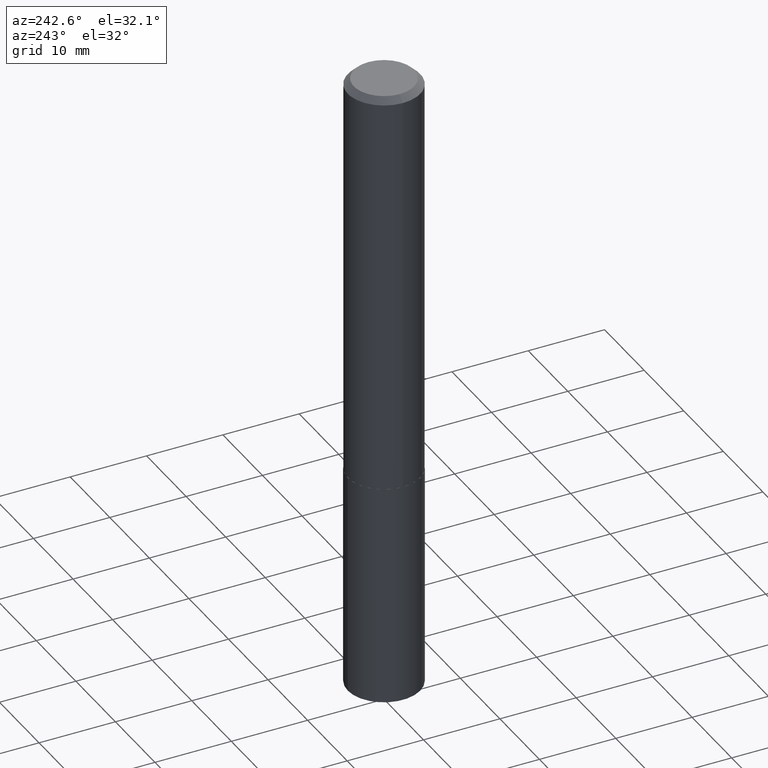
[diagram: clean part render]
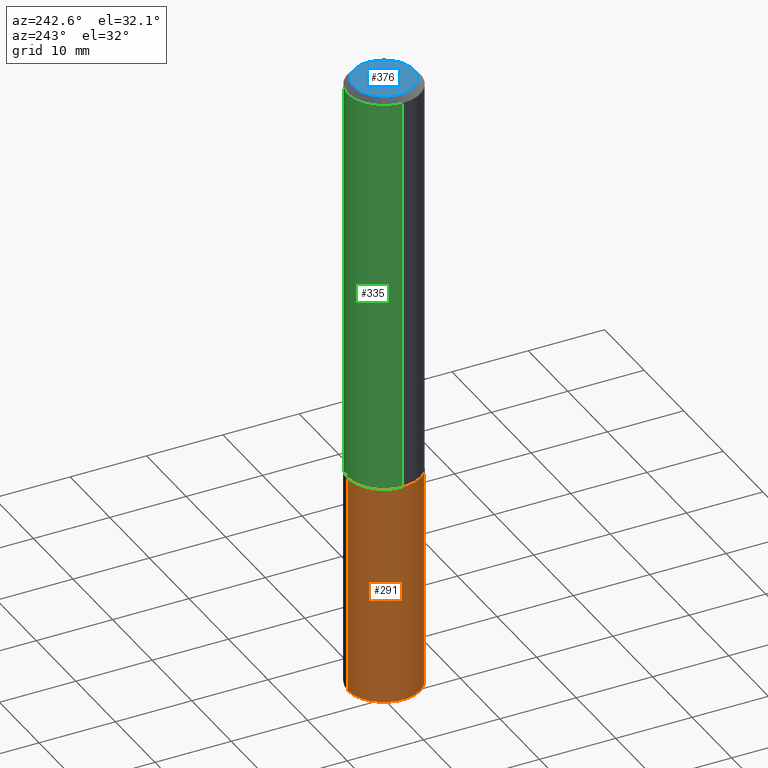
[diagram: same view with three faces highlighted in distinct colors, each labeled with its STEP entity id]
A machine part, auxiliary view with three faces highlighted in distinct colors.
Their STEP definitions:

[orange] entity #291 — the highlighted cylindrical surface (partial cylindrical patch) has radius 4.7498 mm, axis along (-0, 0, 1).
#4 = CARTESIAN_POINT ( 'NONE',  ( 5.150890946467754134E-29, -7.354107144005318601E-15, -2.106300000000000505 ) ) ;
#5 = CIRCLE ( 'NONE', #84, 0.1869999999999999996 ) ;
#13 = EDGE_CURVE ( 'NONE', #320, #356, #267, .T. ) ;
#15 = EDGE_CURVE ( 'NONE', #320, #315, #5, .T. ) ;
#39 = LINE ( 'NONE', #152, #256 ) ;
#44 = CARTESIAN_POINT ( 'NONE',  ( 1.328714915871467217E-15, 0.1869999999999926998, -2.106300000000000949 ) ) ;
#54 = CARTESIAN_POINT ( 'NONE',  ( -1.305814020727280331E-15, -0.1870000000000073548, -2.106300000000000061 ) ) ;
#59 = VERTEX_POINT ( 'NONE', #54 ) ;
#65 = DIRECTION ( 'NONE',  ( -2.445454567479548311E-29, 3.491501729479964866E-15, 1.000000000000000000 ) ) ;
#74 = EDGE_LOOP ( 'NONE', ( #324, #111, #286, #352 ) ) ;
#75 = CARTESIAN_POINT ( 'NONE',  ( -1.305814020727252523E-15, -0.1870000000000114071, -3.256993501015380321 ) ) ;
#84 = AXIS2_PLACEMENT_3D ( 'NONE', #334, #362, #92 ) ;
#88 = EDGE_CURVE ( 'NONE', #315, #59, #39, .T. ) ;
#92 = DIRECTION ( 'NONE',  ( -6.982962677686266711E-15, -1.000000000000000000, 2.921762560068730595E-15 ) ) ;
#93 = CARTESIAN_POINT ( 'NONE',  ( 5.150890946467754134E-29, -7.354107144005318601E-15, -2.106300000000000505 ) ) ;
#98 = CARTESIAN_POINT ( 'NONE',  ( 1.328714915871467019E-15, 0.1869999999999886753, -3.256993501015381653 ) ) ;
#111 = ORIENTED_EDGE ( 'NONE', *, *, #15, .T. ) ;
#114 = DIRECTION ( 'NONE',  ( -6.982962677686266711E-15, -1.000000000000000000, 2.921762560068730595E-15 ) ) ;
#116 = CARTESIAN_POINT ( 'NONE',  ( 1.328714915871438620E-15, 0.1869999999999926721, -2.106300000000000949 ) ) ;
#139 = EDGE_CURVE ( 'NONE', #356, #59, #175, .T. ) ;
#152 = CARTESIAN_POINT ( 'NONE',  ( -1.305814020727280331E-15, -0.1870000000000073548, -2.106300000000000061 ) ) ;
#175 = CIRCLE ( 'NONE', #225, 0.1869999999999999996 ) ;
#179 = DIRECTION ( 'NONE',  ( -6.982962677686266711E-15, -1.000000000000000000, 2.921762560068730595E-15 ) ) ;
#208 = FACE_OUTER_BOUND ( 'NONE', #74, .T. ) ;
#213 = DIRECTION ( 'NONE',  ( -2.445454567479548311E-29, 3.491501729479964866E-15, 1.000000000000000000 ) ) ;
#214 = AXIS2_PLACEMENT_3D ( 'NONE', #93, #65, #179 ) ;
#225 = AXIS2_PLACEMENT_3D ( 'NONE', #4, #213, #114 ) ;
#237 = DIRECTION ( 'NONE',  ( -2.445454567479548591E-29, 3.491501729479964471E-15, 1.000000000000000000 ) ) ;
#256 = VECTOR ( 'NONE', #300, 39.37007874015748143 ) ;
#262 = VECTOR ( 'NONE', #237, 39.37007874015748143 ) ;
#267 = LINE ( 'NONE', #116, #262 ) ;
#286 = ORIENTED_EDGE ( 'NONE', *, *, #88, .T. ) ;
#291 = ADVANCED_FACE ( 'NONE', ( #208 ), #332, .T. ) ;
#300 = DIRECTION ( 'NONE',  ( -2.445454567479548591E-29, 3.491501729479964471E-15, 1.000000000000000000 ) ) ;
#315 = VERTEX_POINT ( 'NONE', #75 ) ;
#320 = VERTEX_POINT ( 'NONE', #98 ) ;
#324 = ORIENTED_EDGE ( 'NONE', *, *, #13, .F. ) ;
#332 = CYLINDRICAL_SURFACE ( 'NONE', #214, 0.1869999999999999996 ) ;
#334 = CARTESIAN_POINT ( 'NONE',  ( 7.964859624294848919E-29, -1.137175549290187458E-14, -3.256993501015380765 ) ) ;
#352 = ORIENTED_EDGE ( 'NONE', *, *, #139, .F. ) ;
#356 = VERTEX_POINT ( 'NONE', #44 ) ;
#362 = DIRECTION ( 'NONE',  ( -2.445454567479548311E-29, 3.491501729479964866E-15, 1.000000000000000000 ) ) ;

[blue] entity #376 — the highlighted planar face has unit normal (0, -0, -1).
#10 = DIRECTION ( 'NONE',  ( -2.445468806185136597E-29, 3.491481338843145583E-15, 1.000000000000000000 ) ) ;
#57 = CIRCLE ( 'NONE', #206, 0.1557499999999999996 ) ;
#80 = ORIENTED_EDGE ( 'NONE', *, *, #180, .T. ) ;
#104 = CIRCLE ( 'NONE', #231, 0.1557499999999999996 ) ;
#132 = EDGE_LOOP ( 'NONE', ( #226, #80 ) ) ;
#159 = DIRECTION ( 'NONE',  ( 2.438088387897960049E-29, -3.491481338843145188E-15, -1.000000000000000000 ) ) ;
#180 = EDGE_CURVE ( 'NONE', #260, #232, #104, .T. ) ;
#188 = DIRECTION ( 'NONE',  ( -1.000000000000000000, 6.982962677686265922E-15, -4.876176775795935793E-29 ) ) ;
#191 = FACE_OUTER_BOUND ( 'NONE', #132, .T. ) ;
#192 = PLANE ( 'NONE',  #297 ) ;
#206 = AXIS2_PLACEMENT_3D ( 'NONE', #277, #250, #370 ) ;
#226 = ORIENTED_EDGE ( 'NONE', *, *, #325, .T. ) ;
#231 = AXIS2_PLACEMENT_3D ( 'NONE', #273, #10, #242 ) ;
#232 = VERTEX_POINT ( 'NONE', #358 ) ;
#242 = DIRECTION ( 'NONE',  ( 1.000000000000000000, -6.982962677686265922E-15, 4.876150422495883236E-29 ) ) ;
#244 = CARTESIAN_POINT ( 'NONE',  ( -8.834764860432524555E-48, 1.261370276539608758E-33, 3.612708057484696673E-19 ) ) ;
#250 = DIRECTION ( 'NONE',  ( -2.445468806185136597E-29, 3.491481338843145583E-15, 1.000000000000000000 ) ) ;
#260 = VERTEX_POINT ( 'NONE', #268 ) ;
#268 = CARTESIAN_POINT ( 'NONE',  ( 0.1557499999999999996, -1.230272240287521027E-15, 7.225416115050436478E-19 ) ) ;
#273 = CARTESIAN_POINT ( 'NONE',  ( -1.766952972086504911E-47, 2.522740553079217515E-33, 7.225416114969393346E-19 ) ) ;
#277 = CARTESIAN_POINT ( 'NONE',  ( -1.766952972086504911E-47, 2.522740553079217515E-33, 7.225416114969393346E-19 ) ) ;
#297 = AXIS2_PLACEMENT_3D ( 'NONE', #244, #159, #188 ) ;
#325 = EDGE_CURVE ( 'NONE', #232, #260, #57, .T. ) ;
#358 = CARTESIAN_POINT ( 'NONE',  ( -0.1557499999999999996, 1.142150832969059533E-15, 7.225416114891427850E-19 ) ) ;
#370 = DIRECTION ( 'NONE',  ( 1.000000000000000000, -6.982962677686265922E-15, 4.876150422495883236E-29 ) ) ;
#376 = ADVANCED_FACE ( 'NONE', ( #191 ), #192, .F. ) ;

[green] entity #335 — the highlighted cylindrical surface (partial cylindrical patch) has radius 4.7498 mm, axis along (-0, 0, 1).
#7 = EDGE_CURVE ( 'NONE', #265, #26, #304, .T. ) ;
#11 = CYLINDRICAL_SURFACE ( 'NONE', #215, 0.1870000000000001383 ) ;
#26 = VERTEX_POINT ( 'NONE', #219 ) ;
#36 = CARTESIAN_POINT ( 'NONE',  ( 7.642090019328603538E-31, -1.091087918388490390E-16, -0.03125000000000021511 ) ) ;
#40 = DIRECTION ( 'NONE',  ( -2.445468806185136597E-29, 3.491481338843145583E-15, 1.000000000000000000 ) ) ;
#66 = CARTESIAN_POINT ( 'NONE',  ( 5.149668212064661332E-29, -7.352361403335897886E-15, -2.105800000000000338 ) ) ;
#91 = CARTESIAN_POINT ( 'NONE',  ( -0.1870000000000002771, -6.023646487464508570E-15, -2.105800000000000338 ) ) ;
#113 = ORIENTED_EDGE ( 'NONE', *, *, #302, .F. ) ;
#115 = DIRECTION ( 'NONE',  ( -2.445468806185136877E-29, 3.491481338843145188E-15, 1.000000000000000000 ) ) ;
#118 = DIRECTION ( 'NONE',  ( -2.445468806185136597E-29, 3.491481338843145583E-15, 1.000000000000000000 ) ) ;
#126 = FACE_OUTER_BOUND ( 'NONE', #355, .T. ) ;
#147 = CARTESIAN_POINT ( 'NONE',  ( -0.1870000000000001383, 1.328714915871388330E-15, -9.198408618776680107E-30 ) ) ;
#149 = VECTOR ( 'NONE', #269, 39.37007874015748143 ) ;
#154 = AXIS2_PLACEMENT_3D ( 'NONE', #66, #40, #247 ) ;
#156 = DIRECTION ( 'NONE',  ( -2.445468806185136597E-29, 3.491481338843145583E-15, 1.000000000000000000 ) ) ;
#165 = ORIENTED_EDGE ( 'NONE', *, *, #306, .T. ) ;
#203 = VERTEX_POINT ( 'NONE', #296 ) ;
#215 = AXIS2_PLACEMENT_3D ( 'NONE', #252, #156, #373 ) ;
#219 = CARTESIAN_POINT ( 'NONE',  ( 0.1870000000000000551, -1.414922812566181102E-15, -0.03125000000000021511 ) ) ;
#247 = DIRECTION ( 'NONE',  ( 1.000000000000000000, -6.982962677686265133E-15, 0.000000000000000000 ) ) ;
#252 = CARTESIAN_POINT ( 'NONE',  ( 0.000000000000000000, 0.000000000000000000, 0.000000000000000000 ) ) ;
#265 = VERTEX_POINT ( 'NONE', #330 ) ;
#269 = DIRECTION ( 'NONE',  ( -2.445468806185136877E-29, 3.491481338843145188E-15, 1.000000000000000000 ) ) ;
#276 = CIRCLE ( 'NONE', #389, 0.1870000000000000551 ) ;
#280 = VECTOR ( 'NONE', #115, 39.37007874015748143 ) ;
#285 = EDGE_CURVE ( 'NONE', #290, #203, #298, .T. ) ;
#290 = VERTEX_POINT ( 'NONE', #91 ) ;
#296 = CARTESIAN_POINT ( 'NONE',  ( -0.1870000000000000551, -2.402020181715984177E-15, -0.03125000000000021511 ) ) ;
#298 = LINE ( 'NONE', #147, #280 ) ;
#302 = EDGE_CURVE ( 'NONE', #26, #203, #276, .T. ) ;
#304 = LINE ( 'NONE', #329, #149 ) ;
#306 = EDGE_CURVE ( 'NONE', #265, #290, #331, .T. ) ;
#318 = ORIENTED_EDGE ( 'NONE', *, *, #7, .F. ) ;
#329 = CARTESIAN_POINT ( 'NONE',  ( 0.1870000000000001383, -1.305814020727332790E-15, 9.118450570738406715E-30 ) ) ;
#330 = CARTESIAN_POINT ( 'NONE',  ( 0.1870000000000002771, -8.658175424063231465E-15, -2.105800000000000338 ) ) ;
#331 = CIRCLE ( 'NONE', #154, 0.1870000000000002771 ) ;
#333 = DIRECTION ( 'NONE',  ( 1.000000000000000000, -6.982962677686266711E-15, 0.000000000000000000 ) ) ;
#335 = ADVANCED_FACE ( 'NONE', ( #126 ), #11, .T. ) ;
#355 = EDGE_LOOP ( 'NONE', ( #165, #388, #113, #318 ) ) ;
#373 = DIRECTION ( 'NONE',  ( 1.000000000000000000, -6.982962677686266711E-15, 4.876176775795935793E-29 ) ) ;
#388 = ORIENTED_EDGE ( 'NONE', *, *, #285, .T. ) ;
#389 = AXIS2_PLACEMENT_3D ( 'NONE', #36, #118, #333 ) ;